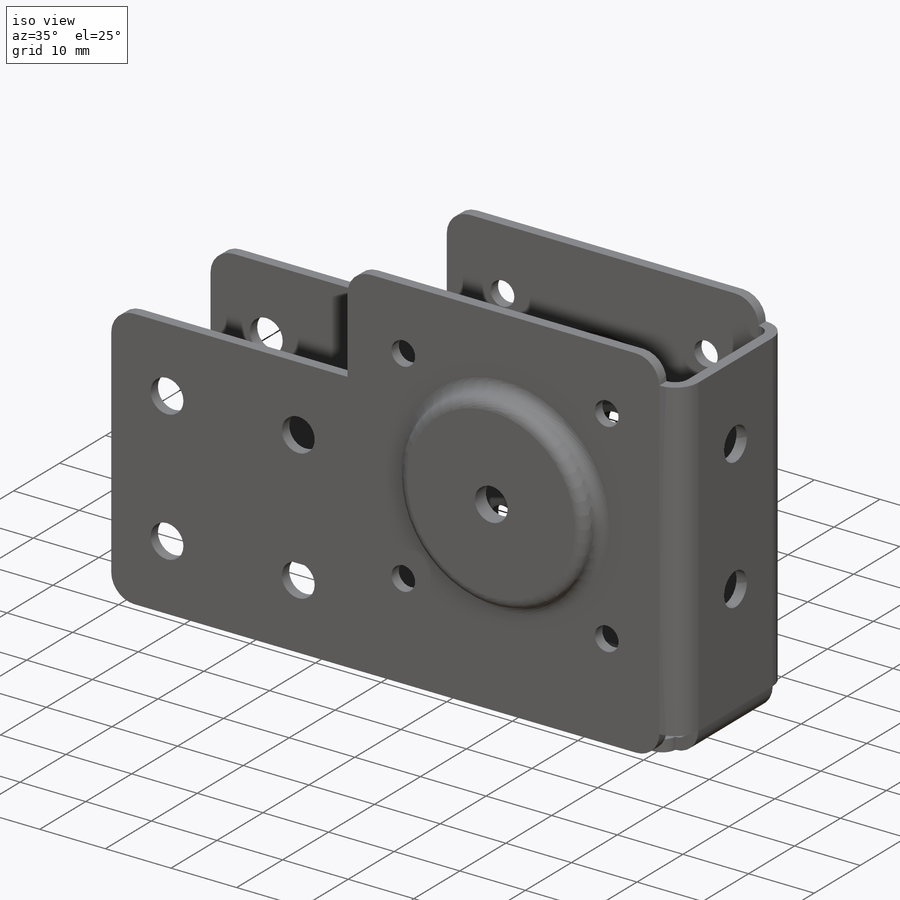
[diagram: iso view]
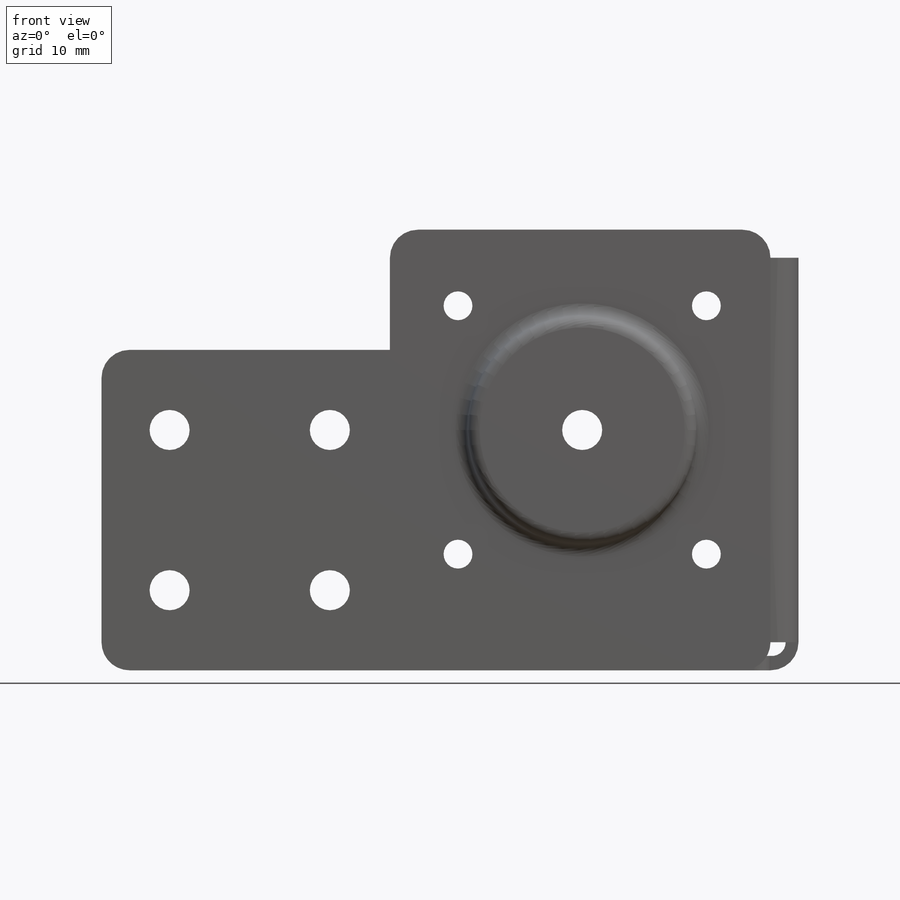
[diagram: front view]
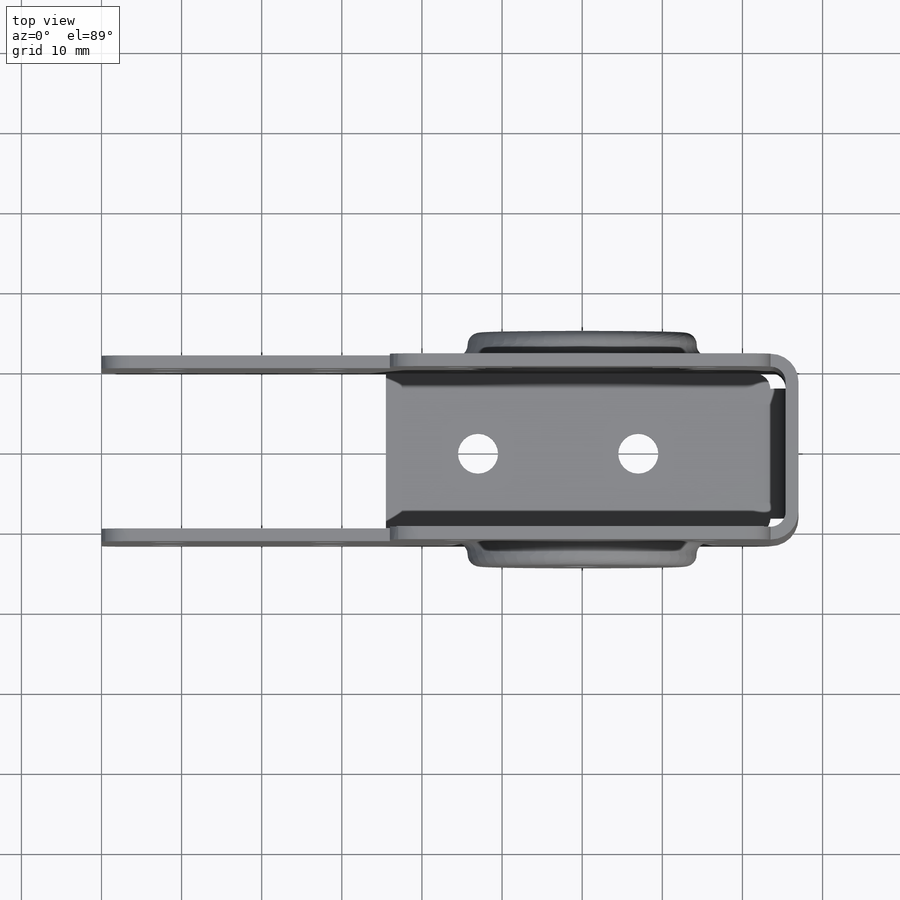
[diagram: top view]
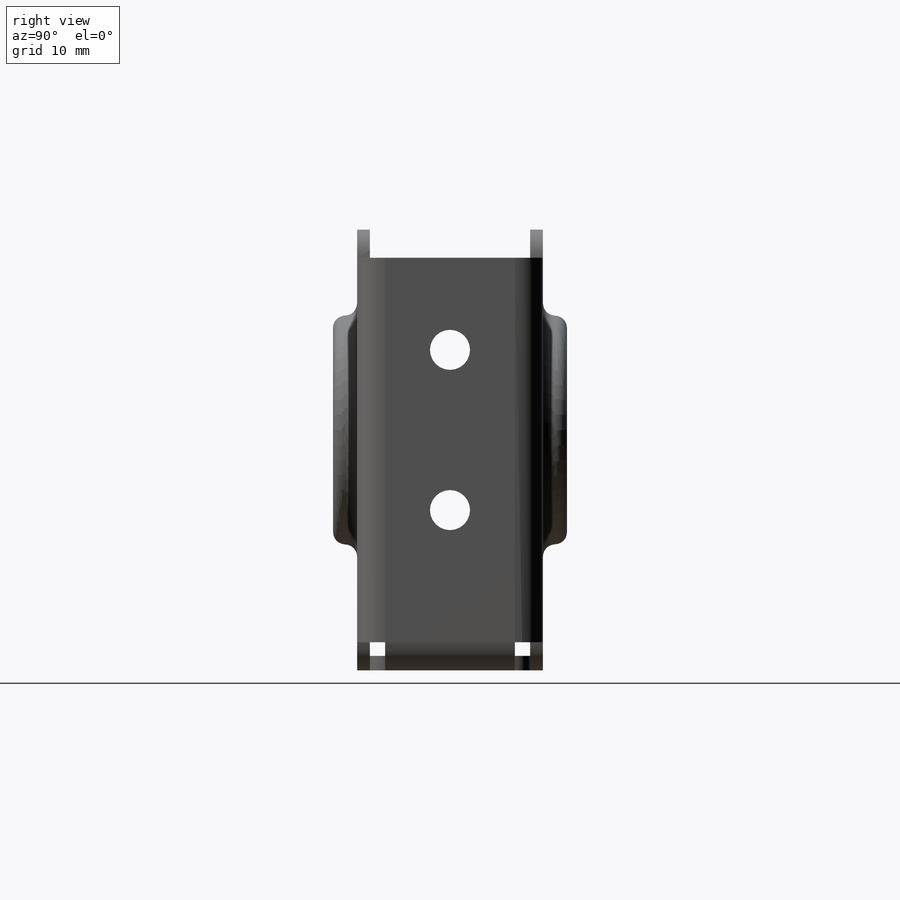
[diagram: right view]
SOLIDWORKS PART (.sldprt)
format: sldprt  version: not decoded by parser v0  size: 537,088 bytes
history: native  units: mm
features: sketch x13, cut_extrude x8, extrude x5, fillet x5, pattern_linear x2, material x1, plane x1, mirror x1 (+12 scaffold rows collapsed)
feature tree (48):
  scaffold x12  (default folders/planes/origin — collapsed)
  material  "Material <not specified>"
  sketch  "Sketch1"  dims[D5=3.5mm D1=83.5mm D2=55.0mm D3=40.0mm D4=47.5mm]
  extrude  "Boss-Extrude1"  Depth=1.6mm
  sketch  "Sketch2"  dims[D1=5.0mm D2=8.5mm D3=10.0mm]
  cut_extrude  "Cut-Extrude1"  Depth=1.6mm
  pattern_linear  "LPattern1"  Count1=2 Count2=2 Spacing1=20mm Spacing2=20mm
  sketch  "Sketch3"  dims[D1=3.6mm D2=8.5mm D3=9.5mm]
  cut_extrude  "Cut-Extrude2"  Depth=1.6mm
  pattern_linear  "LPattern2"  Count1=2 Count2=2 Spacing1=31mm Spacing2=31mm
  sketch  "Sketch5"  dims[D1=28.6mm]
  extrude  "Boss-Extrude2"  Depth=3mm
  fillet  "Fillet1"  Radius=1.5mm
  sketch  "Sketch4"  dims[D1=5.0mm]
  cut_extrude  "Cut-Extrude3"  [1 undecoded]
  sketch  "Sketch6"  dims[D1=26.8mm]
  cut_extrude  "Cut-Extrude4"  Depth=2.2mm
  fillet  "Fillet2"  Radius=1.1mm
  sketch  "Sketch7"  dims[D1=3.5mm]
  extrude  "Boss-Extrude3"  Depth=11.6mm
  fillet  "Fillet3"  Radius=3.5mm
  sketch  "Sketch8"  dims[D1=1.6mm]
  cut_extrude  "Cut-Extrude5"  [1 undecoded]
  sketch  "Sketch9"  dims[D1=48.0mm D2=1.8mm D3=3.5mm]
  extrude  "Boss-Extrude4"  Depth=10mm
  fillet  "Fillet4"  Radius=2mm
  sketch  "Sketch11"
  extrude  "Boss-Extrude5"  [1 undecoded]
  fillet  "Fillet5"  Radius=3.5mm
  sketch  "Sketch12"
  cut_extrude  "Cut-Extrude6"  Depth=10mm
  plane  "Plane1"  Offset=10mm
  mirror  "Mirror5"
  sketch  "Sketch13"  dims[D1=5.0mm D2=11.5mm D3=20.0mm]
  cut_extrude  "Cut-Extrude7"  Depth=10mm
  sketch  "Sketch14"  dims[D1=5.0mm D2=20.0mm D3=11.5mm]
  cut_extrude  "Cut-Extrude8"  Depth=10mm
decode coverage: 28 of 34 modeling features carry decoded parameters
note: 3 parameter values undecoded
summary: no parameter record found for 3 features
note: suppression state not decoded; provenance and decode notes live in map.json
